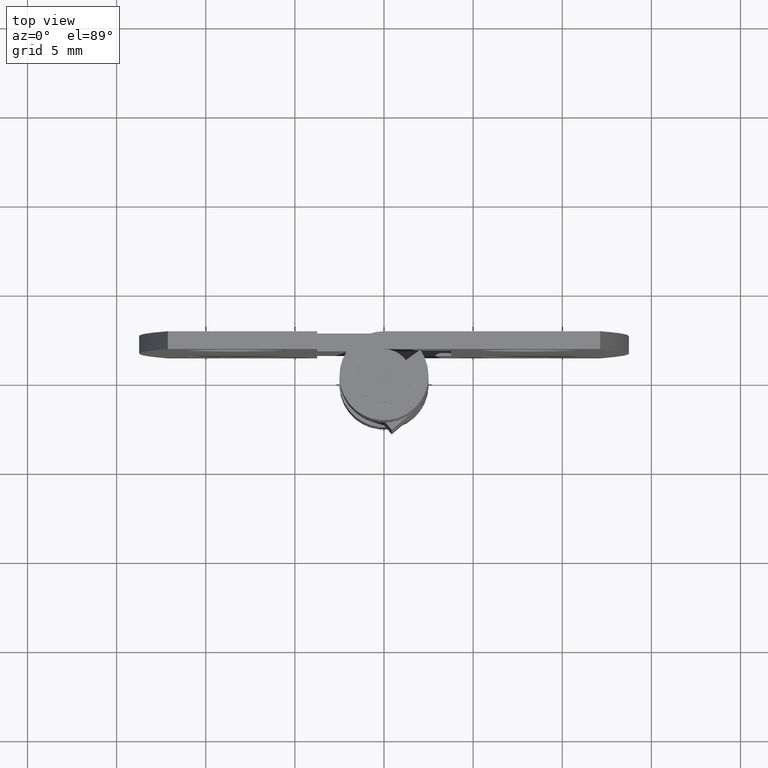
[diagram: clean part render]
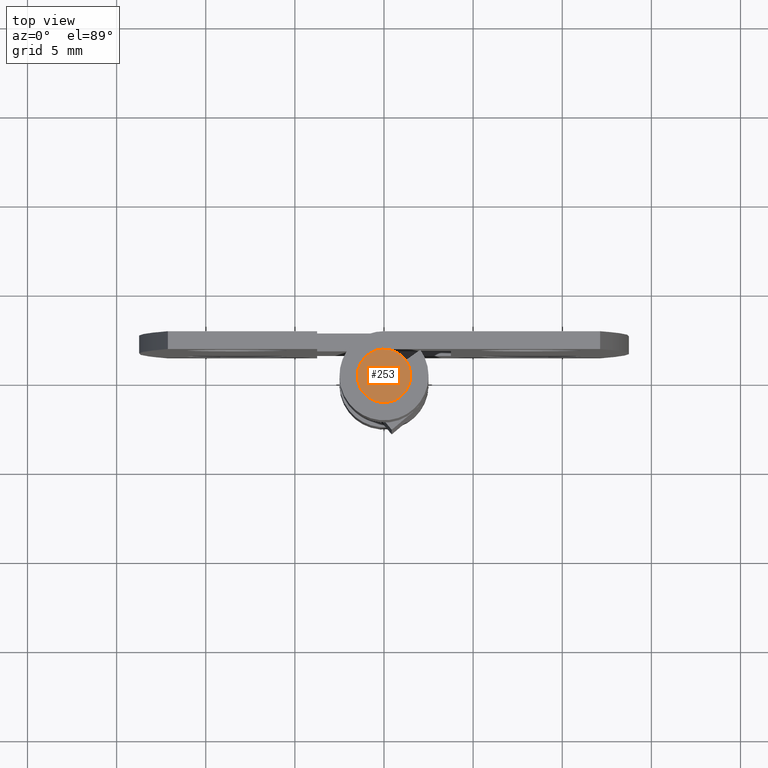
[diagram: same view with one face highlighted and labeled with its STEP entity id]
A machine part, top view. The second image highlights one B-rep face of the part: STEP entity #253.
In plain terms, the highlighted face is a freeform B-spline surface patch.
Its self-contained STEP definition (entity closure, byte-faithful):
#85=CARTESIAN_POINT('',(0.177051351996901,-1.489514289544101,30.0));
#86=VERTEX_POINT('',#85);
#92=CARTESIAN_POINT('',(-1.500000000000000,0.0,30.0));
#93=VERTEX_POINT('',#92);
#94=CARTESIAN_POINT('',(0.177051351996901,-1.489514289544102,30.000000000000004));
#95=CARTESIAN_POINT('',(0.088836179489753,-1.500000000000000,30.0));
#96=CARTESIAN_POINT('',(0.0,-1.500000000000000,30.0));
#97=CARTESIAN_POINT('',(-1.500000000000000,-1.500000000000000,30.000000000000004));
#98=CARTESIAN_POINT('',(-1.500000000000000,0.0,30.0));
#106=(BOUNDED_CURVE()B_SPLINE_CURVE(2,(#94,#95,#96,#97,#98),.UNSPECIFIED.,.F.,.U.)B_SPLINE_CURVE_WITH_KNOTS((3,2,3),(0.229562473512975,0.250000000000000,0.500000000000000),.UNSPECIFIED.)CURVE()GEOMETRIC_REPRESENTATION_ITEM()RATIONAL_B_SPLINE_CURVE((0.956026754182654,0.976055948330520,1.0,0.707106781186548,1.0))REPRESENTATION_ITEM(''));
#107=EDGE_CURVE('',#86,#93,#106,.T.);
#109=CARTESIAN_POINT('',(-0.091572809380306,1.497202197628028,30.0));
#110=VERTEX_POINT('',#109);
#111=CARTESIAN_POINT('',(-1.500000000000000,0.0,30.0));
#112=CARTESIAN_POINT('',(-1.500000000000000,1.411059100211211,29.999999999999996));
#113=CARTESIAN_POINT('',(-0.091572809380306,1.497202197628028,30.0));
#121=(BOUNDED_CURVE()B_SPLINE_CURVE(2,(#111,#112,#113),.UNSPECIFIED.,.F.,.U.)B_SPLINE_CURVE_WITH_KNOTS((3,3),(0.500000000000000,0.739332962223986),.UNSPECIFIED.)CURVE()GEOMETRIC_REPRESENTATION_ITEM()RATIONAL_B_SPLINE_CURVE((1.0,0.719603993304233,0.976072041634662))REPRESENTATION_ITEM(''));
#122=EDGE_CURVE('',#93,#110,#121,.T.);
#196=CARTESIAN_POINT('',(1.500000000000000,0.0,30.0));
#197=VERTEX_POINT('',#196);
#198=CARTESIAN_POINT('',(-0.091572809380306,1.497202197628028,30.0));
#199=CARTESIAN_POINT('',(-0.045829145026122,1.500000000000000,30.000000000000007));
#200=CARTESIAN_POINT('',(0.0,1.500000000000000,30.0));
#201=CARTESIAN_POINT('',(1.500000000000000,1.500000000000000,30.000000000000004));
#202=CARTESIAN_POINT('',(1.500000000000000,0.0,30.0));
#210=(BOUNDED_CURVE()B_SPLINE_CURVE(2,(#198,#199,#200,#201,#202),.UNSPECIFIED.,.F.,.U.)B_SPLINE_CURVE_WITH_KNOTS((3,2,3),(0.739332962223985,0.750000000000000,1.0),.UNSPECIFIED.)CURVE()GEOMETRIC_REPRESENTATION_ITEM()RATIONAL_B_SPLINE_CURVE((0.976072041634661,0.987502787882313,1.0,0.707106781186548,1.0))REPRESENTATION_ITEM(''));
#211=EDGE_CURVE('',#110,#197,#210,.T.);
#213=CARTESIAN_POINT('',(1.500000000000000,0.0,30.0));
#214=CARTESIAN_POINT('',(1.500000000000000,-1.332261788905860,30.000000000000004));
#215=CARTESIAN_POINT('',(0.177051351996901,-1.489514289544102,30.000000000000004));
#223=(BOUNDED_CURVE()B_SPLINE_CURVE(2,(#213,#214,#215),.UNSPECIFIED.,.F.,.U.)B_SPLINE_CURVE_WITH_KNOTS((3,3),(0.0,0.229562473512975),.UNSPECIFIED.)CURVE()GEOMETRIC_REPRESENTATION_ITEM()RATIONAL_B_SPLINE_CURVE((1.0,0.731050832856028,0.956026754182654))REPRESENTATION_ITEM(''));
#224=EDGE_CURVE('',#197,#86,#223,.T.);
#242=CARTESIAN_POINT('',(-1.649849994185418,-1.649822796803193,30.0));
#243=CARTESIAN_POINT('',(1.649850074651688,-1.649822796803193,30.0));
#244=CARTESIAN_POINT('',(-1.649849994185418,1.649813489537912,30.0));
#245=CARTESIAN_POINT('',(1.649850074651688,1.649813489537912,30.0));
#246=B_SPLINE_SURFACE_WITH_KNOTS('',1,1,((#242,#244),(#243,#245)),.UNSPECIFIED.,.F.,.F.,.U.,(2,2),(2,2),(0.0,3.299700068837106),(0.0,3.299636286341105),.UNSPECIFIED.);
#247=ORIENTED_EDGE('',*,*,#211,.F.);
#248=ORIENTED_EDGE('',*,*,#122,.F.);
#249=ORIENTED_EDGE('',*,*,#107,.F.);
#250=ORIENTED_EDGE('',*,*,#224,.F.);
#251=EDGE_LOOP('',(#247,#248,#249,#250));
#252=FACE_OUTER_BOUND('',#251,.T.);
#253=ADVANCED_FACE('',(#252),#246,.T.);